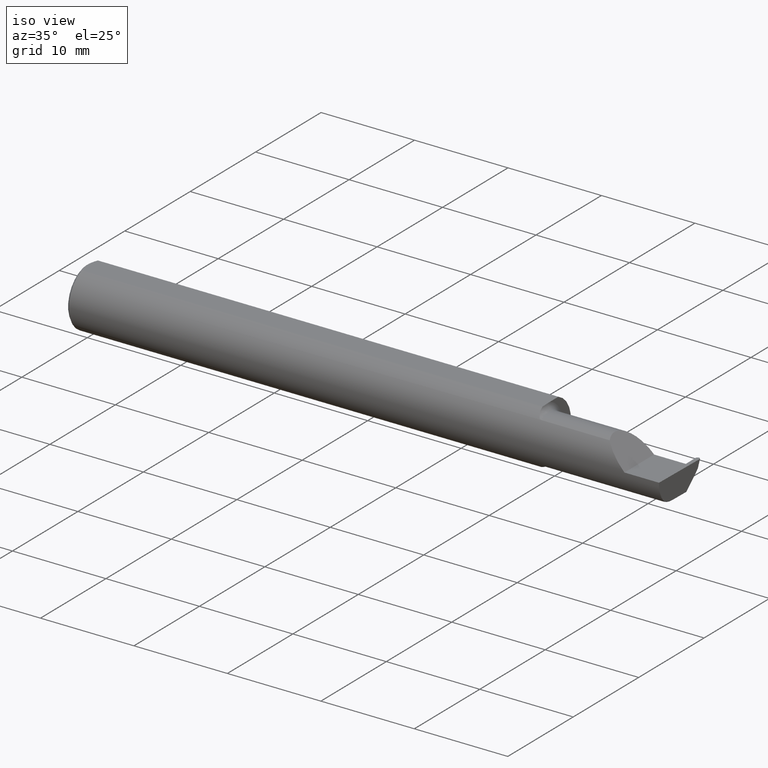
[diagram: clean part render]
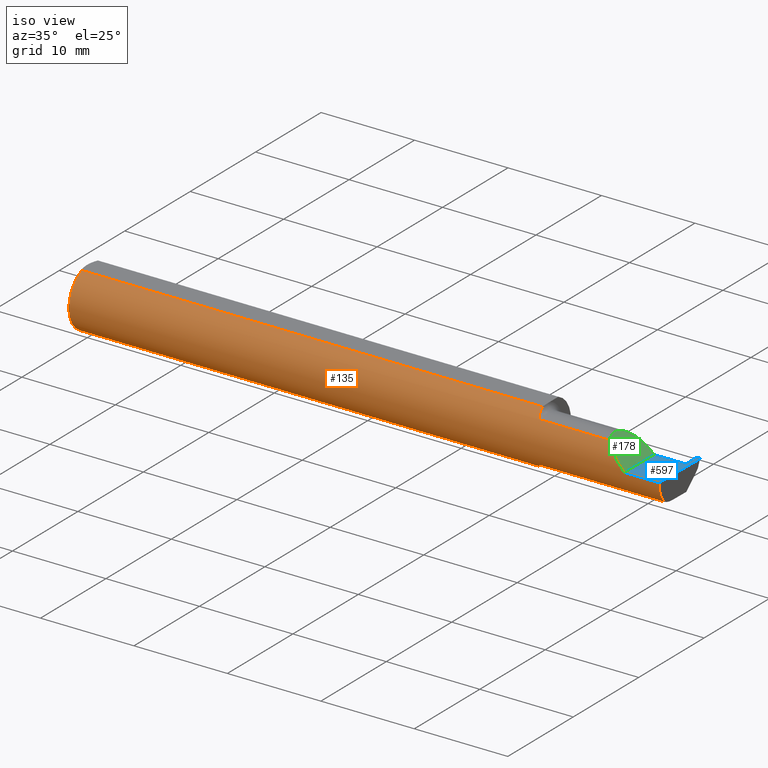
[diagram: same view with three faces highlighted in distinct colors, each labeled with its STEP entity id]
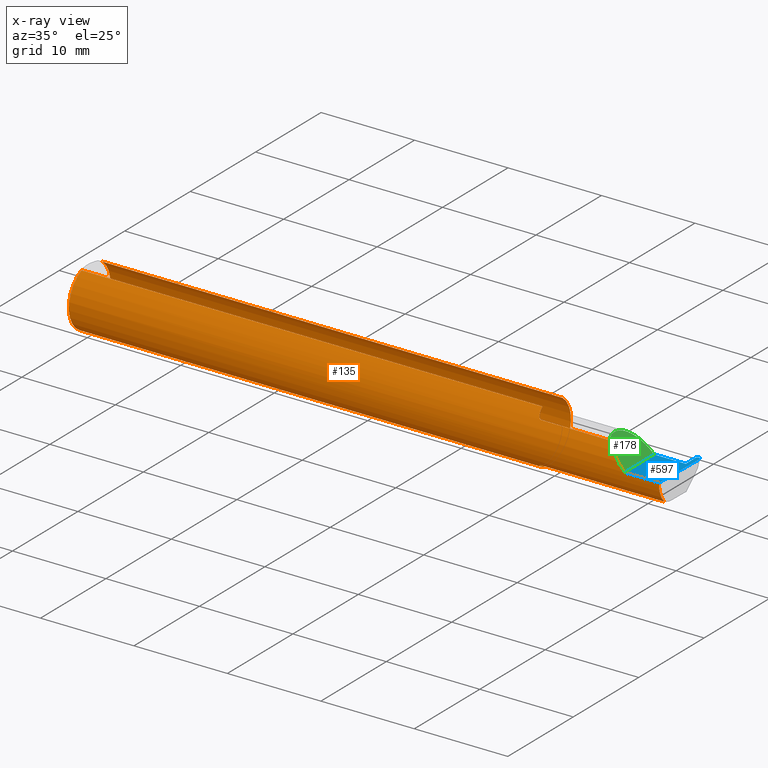
[diagram: x-ray of the same camera — body ghosted, the three highlighted faces saturated]
A machine part, iso view with three faces highlighted in distinct colors.
The next image is the same camera in x-ray (body ghosted, the three faces saturated) — at least one of them is partly hidden behind the body in this view.
Their STEP definitions:

[orange] entity #135 — the highlighted cylindrical surface (edge-blend (fillet) strip) has radius 3.175 mm, axis along (-1, -0, -0).
#1 = VERTEX_POINT ( 'NONE', #115 ) ;
#2 = B_SPLINE_CURVE_WITH_KNOTS ( 'NONE', 3,
 ( #521, #93, #359, #642, #52, #631, #318, #646, #149, #696, #572, #683 ),
 .UNSPECIFIED., .F., .F.,
 ( 4, 2, 2, 2, 2, 4 ),
 ( 1.964009442425878487E-07, 0.0001304774066965835465, 0.0002607584124489245006, 0.0005213204239535936153, 0.001042444446962931086, 0.002084692492981607328 ),
 .UNSPECIFIED. ) ;
#3 = CARTESIAN_POINT ( 'NONE',  ( 1.970169762358874088, -0.08954173371311460738, 0.08723520050116033431 ) ) ;
#9 = ORIENTED_EDGE ( 'NONE', *, *, #89, .F. ) ;
#12 = CARTESIAN_POINT ( 'NONE',  ( 0.000000000000000000, 0.000000000000000000, 0.000000000000000000 ) ) ;
#15 = AXIS2_PLACEMENT_3D ( 'NONE', #12, #551, #181 ) ;
#22 = CARTESIAN_POINT ( 'NONE',  ( 0.000000000000000000, 0.04898979485566374442, 0.1149999999999999217 ) ) ;
#23 = EDGE_CURVE ( 'NONE', #540, #515, #102, .T. ) ;
#24 = VERTEX_POINT ( 'NONE', #385 ) ;
#29 = CIRCLE ( 'NONE', #634, 0.1250000000000000000 ) ;
#33 = CARTESIAN_POINT ( 'NONE',  ( 1.949999999999999956, 0.000000000000000000, 0.000000000000000000 ) ) ;
#34 = VERTEX_POINT ( 'NONE', #659 ) ;
#38 = ORIENTED_EDGE ( 'NONE', *, *, #661, .F. ) ;
#45 = DIRECTION ( 'NONE',  ( 0.000000000000000000, 0.000000000000000000, -1.000000000000000000 ) ) ;
#52 = CARTESIAN_POINT ( 'NONE',  ( 1.967439721641150552, -0.08786602687380742904, -0.08891702384475583254 ) ) ;
#65 = CIRCLE ( 'NONE', #346, 0.1250000000000000000 ) ;
#68 = DIRECTION ( 'NONE',  ( -1.000000000000000000, -0.000000000000000000, -0.000000000000000000 ) ) ;
#72 = CARTESIAN_POINT ( 'NONE',  ( 2.317450832343515899, -0.1250000000000000278, 0.03254916765648410010 ) ) ;
#80 = VERTEX_POINT ( 'NONE', #509 ) ;
#89 = EDGE_CURVE ( 'NONE', #218, #34, #445, .T. ) ;
#93 = CARTESIAN_POINT ( 'NONE',  ( 1.973259114367879707, -0.09042045454545442895, -0.08630840862739515285 ) ) ;
#100 = VERTEX_POINT ( 'NONE', #349 ) ;
#102 = CIRCLE ( 'NONE', #292, 0.1250000000000000000 ) ;
#105 = CARTESIAN_POINT ( 'NONE',  ( 2.228741705000000017, -0.09042045454545429017, 0.08630840862739524999 ) ) ;
#106 = ORIENTED_EDGE ( 'NONE', *, *, #653, .F. ) ;
#108 = CARTESIAN_POINT ( 'NONE',  ( 1.951278290187167697, -0.04898979485482139740, 0.1149999999999999217 ) ) ;
#109 = ORIENTED_EDGE ( 'NONE', *, *, #150, .T. ) ;
#111 = CARTESIAN_POINT ( 'NONE',  ( 1.952426556614086817, -0.05801934803182858674, 0.1111534264545073619 ) ) ;
#112 = DIRECTION ( 'NONE',  ( 0.000000000000000000, 0.000000000000000000, -1.000000000000000000 ) ) ;
#114 = VECTOR ( 'NONE', #245, 39.37007874015748143 ) ;
#115 = CARTESIAN_POINT ( 'NONE',  ( 2.350000000000000089, -0.1250000000000000278, 1.836970198721028825E-17 ) ) ;
#128 = CARTESIAN_POINT ( 'NONE',  ( 2.287236475649208511, -0.1128945894460739036, 0.06276352435079098069 ) ) ;
#135 = ADVANCED_FACE ( 'NONE', ( #281 ), #341, .T. ) ;
#136 = ORIENTED_EDGE ( 'NONE', *, *, #334, .F. ) ;
#146 = VERTEX_POINT ( 'NONE', #459 ) ;
#149 = CARTESIAN_POINT ( 'NONE',  ( 1.955932841370988884, -0.07048791403321996718, -0.1034389270157552443 ) ) ;
#150 = EDGE_CURVE ( 'NONE', #1, #186, #628, .T. ) ;
#151 = DIRECTION ( 'NONE',  ( 0.000000000000000000, 1.000000000000000000, 0.000000000000000000 ) ) ;
#168 =( BOUNDED_CURVE ( )  B_SPLINE_CURVE ( 3, ( #356, #311, #413, #192 ),
 .UNSPECIFIED., .F., .T. ) 
 B_SPLINE_CURVE_WITH_KNOTS ( ( 4, 4 ),
 ( 0.3451966888490702323, 1.107331509589587926 ),
 .UNSPECIFIED. ) 
 CURVE ( )  GEOMETRIC_REPRESENTATION_ITEM ( )  RATIONAL_B_SPLINE_CURVE ( ( 1.000000000000000000, 0.9521787881681380572, 0.9521787881681380572, 1.000000000000000000 ) ) 
 REPRESENTATION_ITEM ( '' )  );
#181 = DIRECTION ( 'NONE',  ( 0.000000000000000000, 0.000000000000000000, 1.000000000000000000 ) ) ;
#186 = VERTEX_POINT ( 'NONE', #393 ) ;
#192 = CARTESIAN_POINT ( 'NONE',  ( 2.495842809704562626, -0.1250000000000000000, 0.000000000000000000 ) ) ;
#200 = EDGE_CURVE ( 'NONE', #100, #1, #446, .T. ) ;
#203 = LINE ( 'NONE', #415, #114 ) ;
#218 = VERTEX_POINT ( 'NONE', #570 ) ;
#233 = CARTESIAN_POINT ( 'NONE',  ( 0.01000000000000042348, 0.000000000000000000, -0.1250000000000000000 ) ) ;
#234 = DIRECTION ( 'NONE',  ( -1.000000000000000000, -0.000000000000000000, -0.000000000000000000 ) ) ;
#245 = DIRECTION ( 'NONE',  ( 1.000000000000000000, 0.000000000000000000, 0.000000000000000000 ) ) ;
#251 = B_SPLINE_CURVE_WITH_KNOTS ( 'NONE', 3,
 ( #108, #111, #322, #651, #487, #269, #320, #3, #384, #658 ),
 .UNSPECIFIED., .F., .F.,
 ( 4, 2, 2, 2, 4 ),
 ( 5.067393806718675637E-07, 0.0007430328995835074274, 0.001114295979684925154, 0.001299927519735633637, 0.001485559059786342338 ),
 .UNSPECIFIED. ) ;
#252 = EDGE_CURVE ( 'NONE', #80, #100, #168, .T. ) ;
#258 = CARTESIAN_POINT ( 'NONE',  ( 1.949999999999999956, -0.02763636363636367069, -0.1219066503721543265 ) ) ;
#269 = CARTESIAN_POINT ( 'NONE',  ( 1.964945076695470139, -0.08578123596776289495, 0.09094459933485984915 ) ) ;
#271 = EDGE_CURVE ( 'NONE', #452, #218, #65, .T. ) ;
#281 = FACE_OUTER_BOUND ( 'NONE', #339, .T. ) ;
#292 = AXIS2_PLACEMENT_3D ( 'NONE', #382, #323, #112 ) ;
#311 = CARTESIAN_POINT ( 'NONE',  ( 2.493862026000344123, -0.1128945894460738342, -0.06276352435079123049 ) ) ;
#314 = DIRECTION ( 'NONE',  ( 1.000000000000000000, -6.412988513727268357E-17, 0.000000000000000000 ) ) ;
#318 = CARTESIAN_POINT ( 'NONE',  ( 1.962379706860117423, -0.08285324498731283516, -0.09364669410973919250 ) ) ;
#320 = CARTESIAN_POINT ( 'NONE',  ( 1.966446811421532104, -0.08721672169474557756, 0.08955973280246691537 ) ) ;
#321 = ORIENTED_EDGE ( 'NONE', *, *, #23, .T. ) ;
#322 = CARTESIAN_POINT ( 'NONE',  ( 1.954267307214414773, -0.06631395538221165897, 0.1063681193389245799 ) ) ;
#323 = DIRECTION ( 'NONE',  ( 1.000000000000000000, 0.000000000000000000, 0.000000000000000000 ) ) ;
#334 = EDGE_CURVE ( 'NONE', #146, #186, #375, .T. ) ;
#339 = EDGE_LOOP ( 'NONE', ( #342, #571, #469, #109, #136, #427, #38, #321, #529, #9, #404, #106 ) ) ;
#341 = CYLINDRICAL_SURFACE ( 'NONE', #15, 0.1250000000000000000 ) ;
#342 = ORIENTED_EDGE ( 'NONE', *, *, #464, .F. ) ;
#346 = AXIS2_PLACEMENT_3D ( 'NONE', #33, #640, #151 ) ;
#349 = CARTESIAN_POINT ( 'NONE',  ( 2.495842809704562626, -0.1250000000000000000, 0.000000000000000000 ) ) ;
#354 = CARTESIAN_POINT ( 'NONE',  ( 0.01000000000000042348, -0.04898979485566374442, 0.1149999999999999217 ) ) ;
#356 = CARTESIAN_POINT ( 'NONE',  ( 2.493431982762754462, -0.09042045454545430405, -0.08630840862739524999 ) ) ;
#359 = CARTESIAN_POINT ( 'NONE',  ( 1.971593478233292451, -0.08999923832592920947, -0.08675238105120947063 ) ) ;
#374 = VECTOR ( 'NONE', #234, 39.37007874015748143 ) ;
#375 = LINE ( 'NONE', #105, #395 ) ;
#382 = CARTESIAN_POINT ( 'NONE',  ( 0.01000000000000042348, 0.000000000000000000, 0.000000000000000000 ) ) ;
#384 = CARTESIAN_POINT ( 'NONE',  ( 1.972488493957806899, -0.09042045454585201369, 0.08630840862697869431 ) ) ;
#385 = CARTESIAN_POINT ( 'NONE',  ( 1.974999999999999867, -0.09042045454545435956, -0.08630840862739518060 ) ) ;
#393 = CARTESIAN_POINT ( 'NONE',  ( 2.263691591372603895, -0.09042045454545455385, 0.08630840862739504182 ) ) ;
#395 = VECTOR ( 'NONE', #314, 39.37007874015748143 ) ;
#402 = EDGE_CURVE ( 'NONE', #409, #146, #251, .T. ) ;
#404 = ORIENTED_EDGE ( 'NONE', *, *, #271, .F. ) ;
#409 = VERTEX_POINT ( 'NONE', #647 ) ;
#413 = CARTESIAN_POINT ( 'NONE',  ( 2.494705994581233099, -0.1250000000000000278, -0.03254916765648425275 ) ) ;
#415 = CARTESIAN_POINT ( 'NONE',  ( 0.000000000000000000, -0.04898979485566374442, 0.1149999999999999217 ) ) ;
#427 = ORIENTED_EDGE ( 'NONE', *, *, #402, .F. ) ;
#437 = EDGE_CURVE ( 'NONE', #515, #34, #29, .T. ) ;
#445 = LINE ( 'NONE', #22, #374 ) ;
#446 = LINE ( 'NONE', #548, #594 ) ;
#451 = CARTESIAN_POINT ( 'NONE',  ( 2.350000000000000089, -0.1250000000000000278, 1.836970198721028825E-17 ) ) ;
#452 = VERTEX_POINT ( 'NONE', #258 ) ;
#459 = CARTESIAN_POINT ( 'NONE',  ( 1.974999999999999867, -0.09042045454545424854, 0.08630840862739522223 ) ) ;
#464 = EDGE_CURVE ( 'NONE', #80, #24, #576, .T. ) ;
#469 = ORIENTED_EDGE ( 'NONE', *, *, #200, .T. ) ;
#470 = DIRECTION ( 'NONE',  ( -1.000000000000000000, 6.412988513727268357E-17, -0.000000000000000000 ) ) ;
#487 = CARTESIAN_POINT ( 'NONE',  ( 1.960996102358147475, -0.08116363444194692189, 0.09515685373904933519 ) ) ;
#501 = CARTESIAN_POINT ( 'NONE',  ( 2.263691591372603895, -0.09042045454545455385, 0.08630840862739504182 ) ) ;
#503 = VECTOR ( 'NONE', #470, 39.37007874015748143 ) ;
#509 = CARTESIAN_POINT ( 'NONE',  ( 2.493431982762754462, -0.09042045454545430405, -0.08630840862739524999 ) ) ;
#515 = VERTEX_POINT ( 'NONE', #233 ) ;
#521 = CARTESIAN_POINT ( 'NONE',  ( 1.974999999999999867, -0.09042045454545435956, -0.08630840862739518060 ) ) ;
#529 = ORIENTED_EDGE ( 'NONE', *, *, #437, .T. ) ;
#532 = CARTESIAN_POINT ( 'NONE',  ( 2.228741705000000017, -0.09042045454545429017, -0.08630840862739524999 ) ) ;
#540 = VERTEX_POINT ( 'NONE', #354 ) ;
#548 = CARTESIAN_POINT ( 'NONE',  ( 3.749399456654637998E-32, -0.1249999999999999861, 3.061616997868380183E-16 ) ) ;
#551 = DIRECTION ( 'NONE',  ( -1.000000000000000000, -0.000000000000000000, -0.000000000000000000 ) ) ;
#570 = CARTESIAN_POINT ( 'NONE',  ( 1.949999999999999956, 0.04898979485566374442, 0.1149999999999999217 ) ) ;
#571 = ORIENTED_EDGE ( 'NONE', *, *, #252, .T. ) ;
#572 = CARTESIAN_POINT ( 'NONE',  ( 1.949999999999999512, -0.04088126997068484286, -0.1189040164168497227 ) ) ;
#576 = LINE ( 'NONE', #532, #503 ) ;
#594 = VECTOR ( 'NONE', #68, 39.37007874015748143 ) ;
#628 =( BOUNDED_CURVE ( )  B_SPLINE_CURVE ( 3, ( #451, #72, #128, #501 ),
 .UNSPECIFIED., .F., .T. ) 
 B_SPLINE_CURVE_WITH_KNOTS ( ( 4, 4 ),
 ( 4.712388980384689674, 5.474523801125204869 ),
 .UNSPECIFIED. ) 
 CURVE ( )  GEOMETRIC_REPRESENTATION_ITEM ( )  RATIONAL_B_SPLINE_CURVE ( ( 1.000000000000000000, 0.9521787881681385013, 0.9521787881681385013, 1.000000000000000000 ) ) 
 REPRESENTATION_ITEM ( '' )  );
#631 = CARTESIAN_POINT ( 'NONE',  ( 1.964104893754833991, -0.08507551663519483109, -0.09161800969921146676 ) ) ;
#634 = AXIS2_PLACEMENT_3D ( 'NONE', #685, #637, #45 ) ;
#637 = DIRECTION ( 'NONE',  ( 1.000000000000000000, 0.000000000000000000, 0.000000000000000000 ) ) ;
#640 = DIRECTION ( 'NONE',  ( 1.000000000000000000, -6.412988513727268357E-17, 0.000000000000000000 ) ) ;
#642 = CARTESIAN_POINT ( 'NONE',  ( 1.968701570004388612, -0.08871861273376817347, -0.08806160498138401738 ) ) ;
#646 = CARTESIAN_POINT ( 'NONE',  ( 1.957957287629478182, -0.07583111505166778565, -0.09955951024620252054 ) ) ;
#647 = CARTESIAN_POINT ( 'NONE',  ( 1.951278290187167697, -0.04898979485482139740, 0.1149999999999999217 ) ) ;
#651 = CARTESIAN_POINT ( 'NONE',  ( 1.959055883886138938, -0.07758562614434592886, 0.09811804109501608140 ) ) ;
#653 = EDGE_CURVE ( 'NONE', #24, #452, #2, .T. ) ;
#658 = CARTESIAN_POINT ( 'NONE',  ( 1.974999999999999867, -0.09042045454545424854, 0.08630840862739522223 ) ) ;
#659 = CARTESIAN_POINT ( 'NONE',  ( 0.01000000000000042348, 0.04898979485566374442, 0.1149999999999999217 ) ) ;
#661 = EDGE_CURVE ( 'NONE', #540, #409, #203, .T. ) ;
#683 = CARTESIAN_POINT ( 'NONE',  ( 1.949999999999999956, -0.02763636363636367069, -0.1219066503721543265 ) ) ;
#685 = CARTESIAN_POINT ( 'NONE',  ( 0.01000000000000042348, 0.000000000000000000, 0.000000000000000000 ) ) ;
#696 = CARTESIAN_POINT ( 'NONE',  ( 1.951267035147732365, -0.05364148398375701010, -0.1136671534952895662 ) ) ;

[blue] entity #597 — the highlighted planar face has unit normal (-0, 0, -1).
#1 = VERTEX_POINT ( 'NONE', #115 ) ;
#13 = VERTEX_POINT ( 'NONE', #443 ) ;
#68 = DIRECTION ( 'NONE',  ( -1.000000000000000000, -0.000000000000000000, -0.000000000000000000 ) ) ;
#71 = FACE_OUTER_BOUND ( 'NONE', #400, .T. ) ;
#84 = ORIENTED_EDGE ( 'NONE', *, *, #391, .T. ) ;
#85 = CARTESIAN_POINT ( 'NONE',  ( 2.483516143673287768, 0.05399999999999997163, 0.000000000000000000 ) ) ;
#86 = CARTESIAN_POINT ( 'NONE',  ( 2.482491560144744369, 0.1126983510377570080, 0.000000000000000000 ) ) ;
#100 = VERTEX_POINT ( 'NONE', #349 ) ;
#110 = EDGE_CURVE ( 'NONE', #630, #377, #399, .T. ) ;
#115 = CARTESIAN_POINT ( 'NONE',  ( 2.350000000000000089, -0.1250000000000000278, 1.836970198721028825E-17 ) ) ;
#119 = CARTESIAN_POINT ( 'NONE',  ( 2.485980426908312779, 0.1220000000000002333, 1.771906798517136265E-17 ) ) ;
#121 = VECTOR ( 'NONE', #455, 39.37007874015748143 ) ;
#127 = EDGE_CURVE ( 'NONE', #1, #617, #616, .T. ) ;
#129 = CARTESIAN_POINT ( 'NONE',  ( 2.499991849855255133, 0.1126983510377570219, 0.000000000000000000 ) ) ;
#130 = CARTESIAN_POINT ( 'NONE',  ( 1.949999999999999956, 0.05399999999999999245, 6.735557395310437586E-17 ) ) ;
#133 = DIRECTION ( 'NONE',  ( -1.224646799147352468E-16, 0.000000000000000000, -1.000000000000000000 ) ) ;
#138 = CARTESIAN_POINT ( 'NONE',  ( 2.499991849855255133, 0.1126983510377570219, 0.000000000000000000 ) ) ;
#157 = VECTOR ( 'NONE', #458, 39.37007874015747433 ) ;
#159 = EDGE_CURVE ( 'NONE', #617, #13, #604, .T. ) ;
#161 = CARTESIAN_POINT ( 'NONE',  ( 2.482491560144744369, 0.1126983510377570080, 0.000000000000000000 ) ) ;
#167 = VERTEX_POINT ( 'NONE', #86 ) ;
#171 = CARTESIAN_POINT ( 'NONE',  ( 2.350000000000000089, -0.2500000000000000555, 1.836970198721028825E-17 ) ) ;
#180 = CARTESIAN_POINT ( 'NONE',  ( 2.499998666069249253, 0.1130888516759625262, 0.000000000000000000 ) ) ;
#185 = CARTESIAN_POINT ( 'NONE',  ( -3.937007874019685528E-05, 0.1219999999999999835, 0.000000000000000000 ) ) ;
#200 = EDGE_CURVE ( 'NONE', #100, #1, #446, .T. ) ;
#213 = CARTESIAN_POINT ( 'NONE',  ( 2.483516143673287768, 0.05399999999999997163, 0.000000000000000000 ) ) ;
#220 = CARTESIAN_POINT ( 'NONE',  ( 2.491130782529545673, 0.1219999999999999835, 0.000000000000000000 ) ) ;
#224 = EDGE_CURVE ( 'NONE', #357, #167, #629, .T. ) ;
#228 = EDGE_CURVE ( 'NONE', #497, #377, #336, .T. ) ;
#231 = LINE ( 'NONE', #180, #157 ) ;
#238 = VECTOR ( 'NONE', #666, 39.37007874015748143 ) ;
#248 = ORIENTED_EDGE ( 'NONE', *, *, #224, .F. ) ;
#308 = CARTESIAN_POINT ( 'NONE',  ( 2.491130782529545673, 0.1219999999999999835, 0.000000000000000000 ) ) ;
#336 =( BOUNDED_CURVE ( )  B_SPLINE_CURVE ( 3, ( #138, #587, #465, #698 ),
 .UNSPECIFIED., .F., .T. ) 
 B_SPLINE_CURVE_WITH_KNOTS ( ( 4, 4 ),
 ( 1.677524580234106333, 3.253450286950926529 ),
 .UNSPECIFIED. ) 
 CURVE ( )  GEOMETRIC_REPRESENTATION_ITEM ( )  RATIONAL_B_SPLINE_CURVE ( ( 1.000000000000000000, 0.8035272986452476340, 0.8035272986452476340, 1.000000000000000000 ) ) 
 REPRESENTATION_ITEM ( '' )  );
#345 = CARTESIAN_POINT ( 'NONE',  ( 2.350000000000000089, 0.05399999999999996469, 6.735557395310437586E-17 ) ) ;
#349 = CARTESIAN_POINT ( 'NONE',  ( 2.495842809704562626, -0.1250000000000000000, 0.000000000000000000 ) ) ;
#357 = VERTEX_POINT ( 'NONE', #213 ) ;
#377 = VERTEX_POINT ( 'NONE', #390 ) ;
#386 = VECTOR ( 'NONE', #636, 39.37007874015748854 ) ;
#390 = CARTESIAN_POINT ( 'NONE',  ( 2.491352627470454273, 0.1219999999999999835, 0.000000000000000000 ) ) ;
#391 = EDGE_CURVE ( 'NONE', #630, #167, #440, .T. ) ;
#399 = LINE ( 'NONE', #185, #121 ) ;
#400 = EDGE_LOOP ( 'NONE', ( #641, #84, #248, #626, #675, #507, #531, #593, #483 ) ) ;
#410 = PLANE ( 'NONE',  #527 ) ;
#421 = VECTOR ( 'NONE', #674, 39.37007874015748143 ) ;
#433 = VECTOR ( 'NONE', #565, 39.37007874015748143 ) ;
#440 =( BOUNDED_CURVE ( )  B_SPLINE_CURVE ( 3, ( #220, #119, #489, #161 ),
 .UNSPECIFIED., .F., .T. ) 
 B_SPLINE_CURVE_WITH_KNOTS ( ( 4, 4 ),
 ( 6.171327673818449711, 7.747253380535275902 ),
 .UNSPECIFIED. ) 
 CURVE ( )  GEOMETRIC_REPRESENTATION_ITEM ( )  RATIONAL_B_SPLINE_CURVE ( ( 1.000000000000000000, 0.8035272986452463018, 0.8035272986452463018, 1.000000000000000000 ) ) 
 REPRESENTATION_ITEM ( '' )  );
#443 = CARTESIAN_POINT ( 'NONE',  ( 2.477329199258169634, 0.05399999999999997163, 0.000000000000000000 ) ) ;
#446 = LINE ( 'NONE', #548, #594 ) ;
#449 = CARTESIAN_POINT ( 'NONE',  ( 2.500000000000000000, -0.2500000000000000555, 0.000000000000000000 ) ) ;
#455 = DIRECTION ( 'NONE',  ( 1.000000000000000000, -0.000000000000000000, -0.000000000000000000 ) ) ;
#458 = DIRECTION ( 'NONE',  ( -0.01745240643727528213, -0.9998476951563914916, 0.000000000000000000 ) ) ;
#465 = CARTESIAN_POINT ( 'NONE',  ( 2.496502983091687611, 0.1220000000000001916, -1.771906798517135649E-17 ) ) ;
#483 = ORIENTED_EDGE ( 'NONE', *, *, #228, .T. ) ;
#484 = EDGE_CURVE ( 'NONE', #13, #357, #676, .T. ) ;
#489 = CARTESIAN_POINT ( 'NONE',  ( 2.482396552658129973, 0.1181413263005396674, 1.815796599807465209E-17 ) ) ;
#497 = VERTEX_POINT ( 'NONE', #129 ) ;
#507 = ORIENTED_EDGE ( 'NONE', *, *, #127, .F. ) ;
#523 = CARTESIAN_POINT ( 'NONE',  ( 2.482484743930750248, 0.1130888516759625262, 0.000000000000000000 ) ) ;
#527 = AXIS2_PLACEMENT_3D ( 'NONE', #449, #133, #668 ) ;
#531 = ORIENTED_EDGE ( 'NONE', *, *, #200, .F. ) ;
#548 = CARTESIAN_POINT ( 'NONE',  ( 3.749399456654637998E-32, -0.1249999999999999861, 3.061616997868380183E-16 ) ) ;
#550 = EDGE_CURVE ( 'NONE', #497, #100, #231, .T. ) ;
#565 = DIRECTION ( 'NONE',  ( 1.000000000000000000, -0.000000000000000000, -0.000000000000000000 ) ) ;
#587 = CARTESIAN_POINT ( 'NONE',  ( 2.500086857341869528, 0.1181413263005396674, -1.815796599807464593E-17 ) ) ;
#593 = ORIENTED_EDGE ( 'NONE', *, *, #550, .F. ) ;
#594 = VECTOR ( 'NONE', #68, 39.37007874015748143 ) ;
#597 = ADVANCED_FACE ( 'NONE', ( #71 ), #410, .F. ) ;
#604 = LINE ( 'NONE', #130, #238 ) ;
#616 = LINE ( 'NONE', #171, #421 ) ;
#617 = VERTEX_POINT ( 'NONE', #345 ) ;
#626 = ORIENTED_EDGE ( 'NONE', *, *, #484, .F. ) ;
#629 = LINE ( 'NONE', #523, #386 ) ;
#630 = VERTEX_POINT ( 'NONE', #308 ) ;
#636 = DIRECTION ( 'NONE',  ( -0.01745240643727751992, 0.9998476951563912696, -0.000000000000000000 ) ) ;
#641 = ORIENTED_EDGE ( 'NONE', *, *, #110, .F. ) ;
#666 = DIRECTION ( 'NONE',  ( 1.000000000000000000, -6.412988513727268357E-17, 0.000000000000000000 ) ) ;
#668 = DIRECTION ( 'NONE',  ( -1.000000000000000000, 0.000000000000000000, 1.224646799147352468E-16 ) ) ;
#674 = DIRECTION ( 'NONE',  ( -0.000000000000000000, 1.000000000000000000, -0.000000000000000000 ) ) ;
#675 = ORIENTED_EDGE ( 'NONE', *, *, #159, .F. ) ;
#676 = LINE ( 'NONE', #85, #433 ) ;
#698 = CARTESIAN_POINT ( 'NONE',  ( 2.491352627470454273, 0.1219999999999999835, 0.000000000000000000 ) ) ;

[green] entity #178 — the highlighted planar face has unit normal (-0.7071, 0, -0.7071).
#1 = VERTEX_POINT ( 'NONE', #115 ) ;
#72 = CARTESIAN_POINT ( 'NONE',  ( 2.317450832343515899, -0.1250000000000000278, 0.03254916765648410010 ) ) ;
#115 = CARTESIAN_POINT ( 'NONE',  ( 2.350000000000000089, -0.1250000000000000278, 1.836970198721028825E-17 ) ) ;
#127 = EDGE_CURVE ( 'NONE', #1, #617, #616, .T. ) ;
#128 = CARTESIAN_POINT ( 'NONE',  ( 2.287236475649208511, -0.1128945894460739036, 0.06276352435079098069 ) ) ;
#134 = CARTESIAN_POINT ( 'NONE',  ( 2.350000000000000089, -0.2500000000000000555, 1.836970198721028825E-17 ) ) ;
#137 = CARTESIAN_POINT ( 'NONE',  ( 2.263691591372603895, -0.09042045454545455385, 0.08630840862739504182 ) ) ;
#150 = EDGE_CURVE ( 'NONE', #1, #186, #628, .T. ) ;
#171 = CARTESIAN_POINT ( 'NONE',  ( 2.350000000000000089, -0.2500000000000000555, 1.836970198721028825E-17 ) ) ;
#178 = ADVANCED_FACE ( 'NONE', ( #621 ), #337, .F. ) ;
#186 = VERTEX_POINT ( 'NONE', #393 ) ;
#244 = EDGE_LOOP ( 'NONE', ( #492, #656, #545 ) ) ;
#291 = DIRECTION ( 'NONE',  ( -0.7071067811865439090, 0.000000000000000000, -0.7071067811865511255 ) ) ;
#337 = PLANE ( 'NONE',  #546 ) ;
#343 = CARTESIAN_POINT ( 'NONE',  ( 2.266956372099407258, 0.05399999999999999939, 0.08304362790059183208 ) ) ;
#345 = CARTESIAN_POINT ( 'NONE',  ( 2.350000000000000089, 0.05399999999999996469, 6.735557395310437586E-17 ) ) ;
#393 = CARTESIAN_POINT ( 'NONE',  ( 2.263691591372603895, -0.09042045454545455385, 0.08630840862739504182 ) ) ;
#421 = VECTOR ( 'NONE', #674, 39.37007874015748143 ) ;
#451 = CARTESIAN_POINT ( 'NONE',  ( 2.350000000000000089, -0.1250000000000000278, 1.836970198721028825E-17 ) ) ;
#492 = ORIENTED_EDGE ( 'NONE', *, *, #581, .F. ) ;
#501 = CARTESIAN_POINT ( 'NONE',  ( 2.263691591372603895, -0.09042045454545455385, 0.08630840862739504182 ) ) ;
#511 = DIRECTION ( 'NONE',  ( -0.7071067811865511255, 0.000000000000000000, 0.7071067811865439090 ) ) ;
#545 = ORIENTED_EDGE ( 'NONE', *, *, #127, .T. ) ;
#546 = AXIS2_PLACEMENT_3D ( 'NONE', #134, #291, #511 ) ;
#549 = CARTESIAN_POINT ( 'NONE',  ( 2.350000000000000089, 0.05399999999999996469, 6.735557395310437586E-17 ) ) ;
#581 = EDGE_CURVE ( 'NONE', #186, #617, #583, .T. ) ;
#583 =( BOUNDED_CURVE ( )  B_SPLINE_CURVE ( 3, ( #137, #619, #343, #549 ),
 .UNSPECIFIED., .F., .T. ) 
 B_SPLINE_CURVE_WITH_KNOTS ( ( 4, 4 ),
 ( 5.789722842198294472, 7.853981633974482790 ),
 .UNSPECIFIED. ) 
 CURVE ( )  GEOMETRIC_REPRESENTATION_ITEM ( )  RATIONAL_B_SPLINE_CURVE ( ( 1.000000000000000000, 0.6753281001527240424, 0.6753281001527240424, 1.000000000000000000 ) ) 
 REPRESENTATION_ITEM ( '' )  );
#616 = LINE ( 'NONE', #171, #421 ) ;
#617 = VERTEX_POINT ( 'NONE', #345 ) ;
#619 = CARTESIAN_POINT ( 'NONE',  ( 2.224355642859858317, -0.01728409361947881584, 0.1256443571401406056 ) ) ;
#621 = FACE_OUTER_BOUND ( 'NONE', #244, .T. ) ;
#628 =( BOUNDED_CURVE ( )  B_SPLINE_CURVE ( 3, ( #451, #72, #128, #501 ),
 .UNSPECIFIED., .F., .T. ) 
 B_SPLINE_CURVE_WITH_KNOTS ( ( 4, 4 ),
 ( 4.712388980384689674, 5.474523801125204869 ),
 .UNSPECIFIED. ) 
 CURVE ( )  GEOMETRIC_REPRESENTATION_ITEM ( )  RATIONAL_B_SPLINE_CURVE ( ( 1.000000000000000000, 0.9521787881681385013, 0.9521787881681385013, 1.000000000000000000 ) ) 
 REPRESENTATION_ITEM ( '' )  );
#656 = ORIENTED_EDGE ( 'NONE', *, *, #150, .F. ) ;
#674 = DIRECTION ( 'NONE',  ( -0.000000000000000000, 1.000000000000000000, -0.000000000000000000 ) ) ;